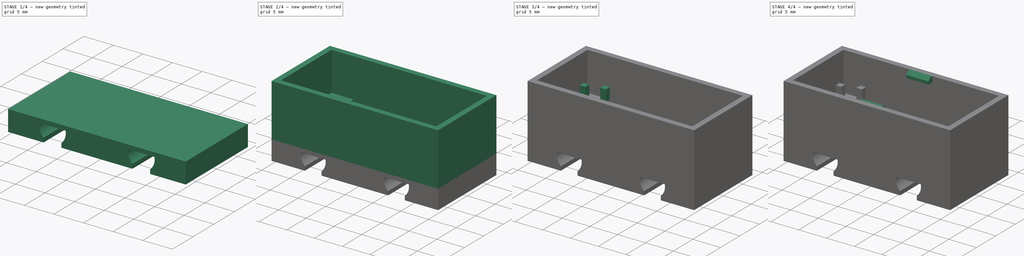
[diagram: build sequence overview — one tinted view per stage of 4, left to right]
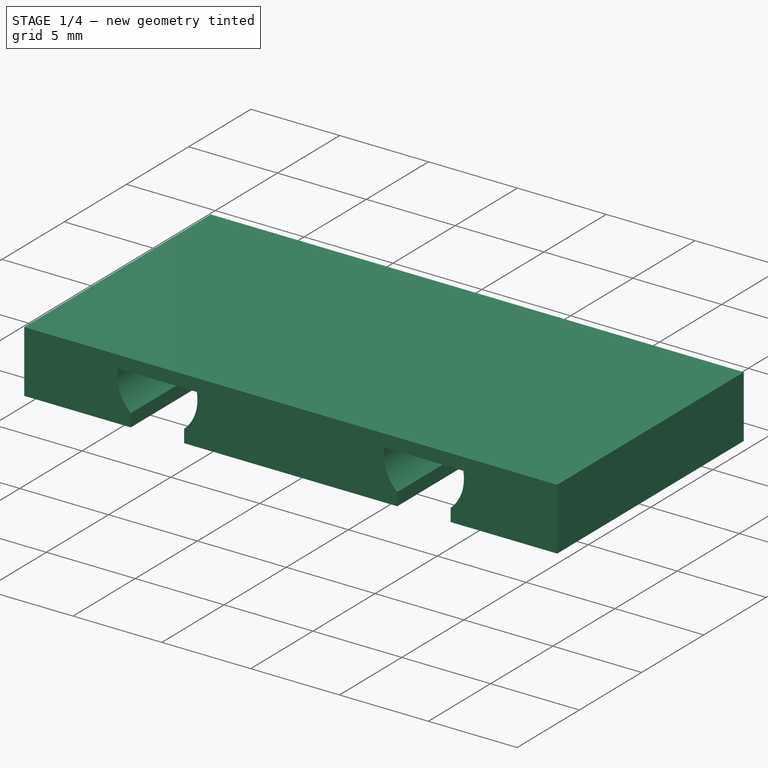
[diagram: stage 1 of 4 — iso view after this stage's code; geometry added in this stage tinted green]
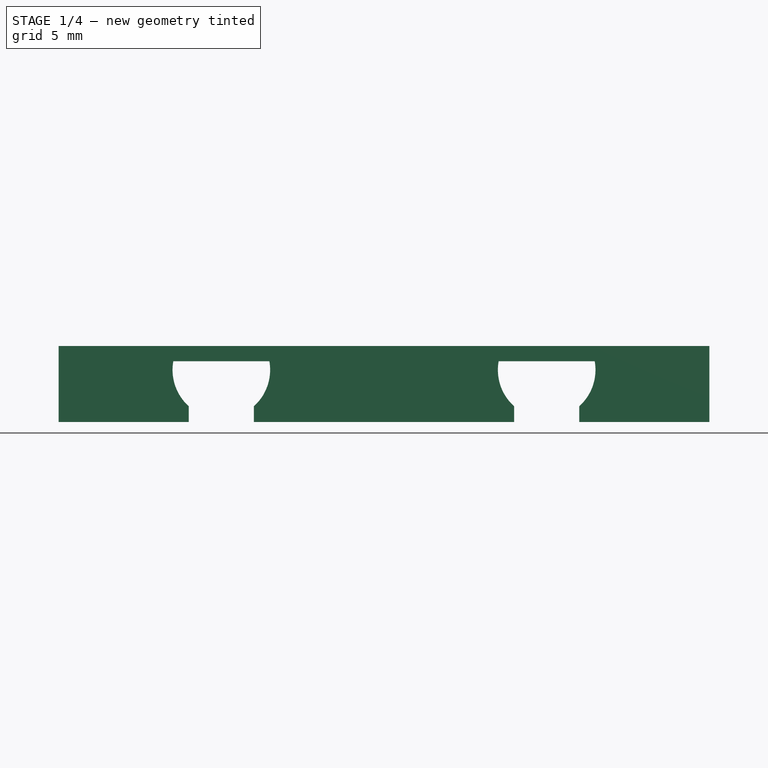
[diagram: stage 1 of 4 — front view after this stage's code; geometry added in this stage tinted green]
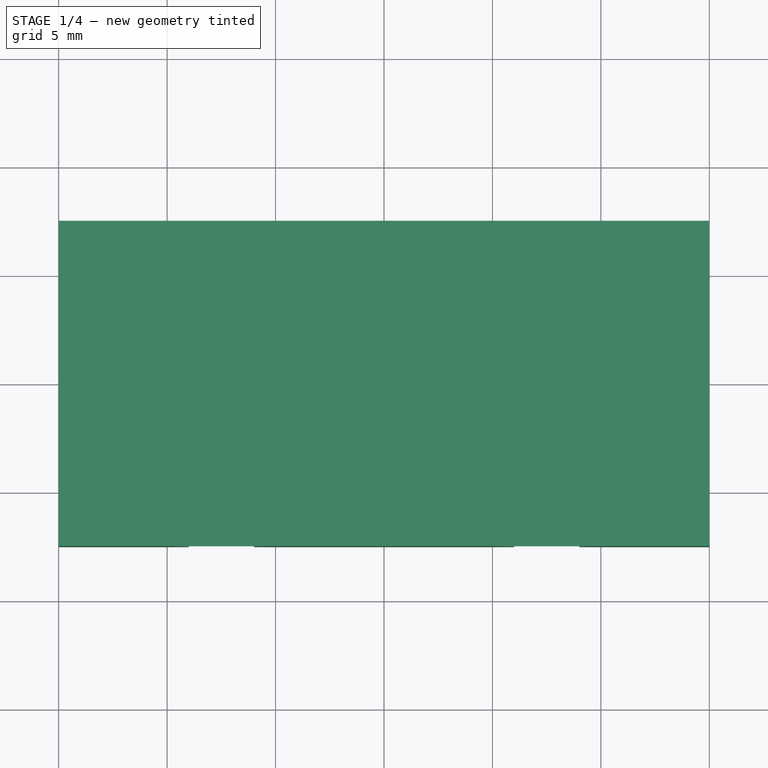
[diagram: stage 1 of 4 — top view after this stage's code; geometry added in this stage tinted green]
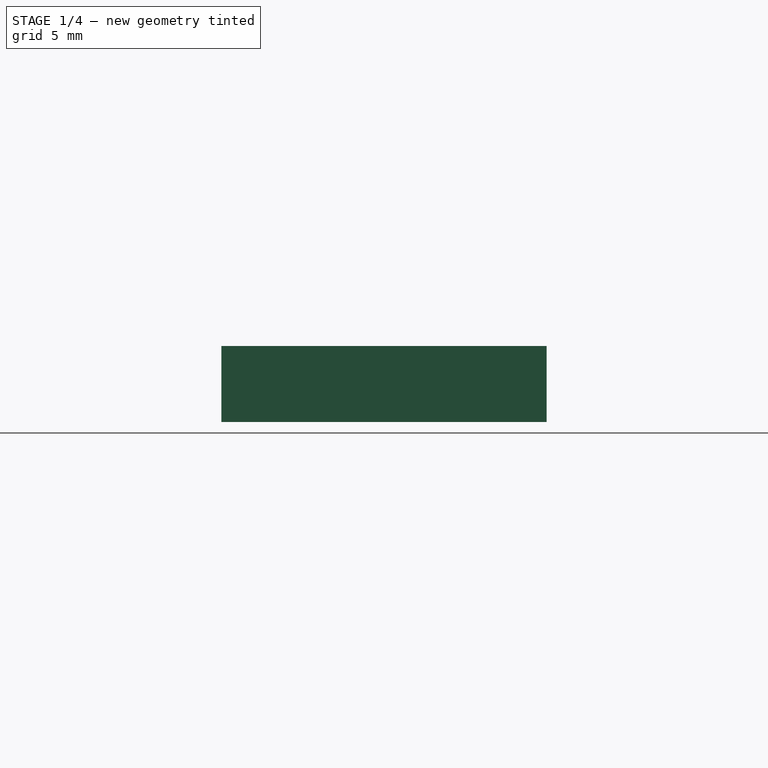
[diagram: stage 1 of 4 — right view after this stage's code; geometry added in this stage tinted green]
FCSTD DOCUMENT  (FreeCAD 0.17R13522 (Git))
Label: bottom30
License: All rights reserved
LicenseURL: http://en.wikipedia.org/wiki/All_rights_reserved
objects: Sketcher::SketchObject×6, PartDesign::Pad×5, PartDesign::Mirrored×5, PartDesign::MultiTransform×2, PartDesign::Pocket×1, PartDesign::LinearPattern×1, PartDesign::Chamfer×1, PartDesign::Body×1, App::Part×1
note: 28 computed .brp shape members not serialized (recipe doc carries the construction recipe); baked Part::Feature solids carry a one-line shape summary decoded from their .brp

FEATURE [Sketcher::SketchObject] Sketch
  MapMode = 5
  Support = -> [XY_Plane001]
  sketch-geometry (4):
    g0: LineSegment StartX=-15 StartY=7.5 StartZ=0 EndX=15 EndY=7.5 EndZ=0
    g1: LineSegment StartX=15 StartY=7.5 StartZ=0 EndX=15 EndY=-7.5 EndZ=0
    g2: LineSegment StartX=15 StartY=-7.5 StartZ=0 EndX=-15 EndY=-7.5 EndZ=0
    g3: LineSegment StartX=-15 StartY=-7.5 StartZ=0 EndX=-15 EndY=7.5 EndZ=0
  constraints (12):
    c: Coincident(g0,g1)
    c: Coincident(g1,g2)
    c: Coincident(g2,g3)
    c: Coincident(g3,g0)
    c: Horizontal(g0)
    c: Horizontal(g2)
    c: Vertical(g1)
    c: Vertical(g3)
    c: Symmetric(g0,g0,g-2)
    c: Symmetric(g0,g2,g-1)
    c: DistanceX(g0,g0) = 30
    c: DistanceY(g3,g3) = 15
FEATURE [PartDesign::Pad] Pad
  Length = 3.5
  Length2 = 100
  Profile = -> Sketch
  Type = 0
FEATURE [Sketcher::SketchObject] Sketch002  label="Sketch001"
  MapMode = 5
  Placement = pos=(0,-7.5,0) rot=(1,0,0;1.5708rad)
  Support = -> [Pad]
  sketch-geometry (8):
    g0: LineSegment StartX=-9 StartY=0.722949 StartZ=0 EndX=-9 EndY=0 EndZ=0
    g1: LineSegment StartX=-6 StartY=0.722949 StartZ=0 EndX=-6 EndY=0 EndZ=0
    g2: LineSegment StartX=-9 StartY=0 StartZ=0 EndX=-6 EndY=0 EndZ=0
    g3: GeomPoint X=-7.5 Y=0 Z=0
    g4: LineSegment [constr] StartX=-7.5 StartY=0 StartZ=0 EndX=-7.5 EndY=2.4 EndZ=0
    g5: ArcOfCircle CenterX=-7.5 CenterY=2.4 CenterZ=0 NormalX=0 NormalY=0 NormalZ=1 AngleXU=0 Radius=2.25 StartAngle=2.96286 EndAngle=3.98266
    g6: ArcOfCircle CenterX=-7.5 CenterY=2.4 CenterZ=0 NormalX=0 NormalY=0 NormalZ=1 AngleXU=0 Radius=2.25 StartAngle=5.44212 EndAngle=6.46191
    g7: LineSegment StartX=-9.71416 StartY=2.8 StartZ=0 EndX=-5.28584 EndY=2.8 EndZ=0
  constraints (22):
    c: PointOnObject(g0,g-1)
    c: Vertical(g0)
    c: Vertical(g1)
    c: Coincident(g2,g0)
    c: Coincident(g2,g1)
    c: PointOnObject(g1,g-1)
    c: DistanceX(g2,g2) = 3
    c: Symmetric(g0,g1,g3)
    c: Coincident(g4,g3)
    c: Vertical(g4)
    c: Coincident(g5,g4)
    c: Coincident(g5,g0)
    c: Coincident(g6,g4)
    c: Coincident(g6,g1)
    c: Coincident(g7,g5)
    c: Coincident(g7,g6)
    c: Horizontal(g7)
    c: Radius(g5) = 2.25
    c: Equal(g5,g6)
    c: DistanceY(g1,g6) = 2.8
    c: DistanceY(g4,g4) = 2.4
    c: DistanceX(g3,g-1) = 7.5
FEATURE [PartDesign::Pocket] Pocket
  BaseFeature = -> Pad
  Length = 5
  Length2 = 100
  Profile = -> Sketch002
  Type = 1
FEATURE [PartDesign::LinearPattern] LinearPattern
  BaseFeature = -> Pocket
  Direction = -> Sketch002 [H_Axis]
  Length = 15
  Occurrences = 2
  Originals = -> [Pocket]
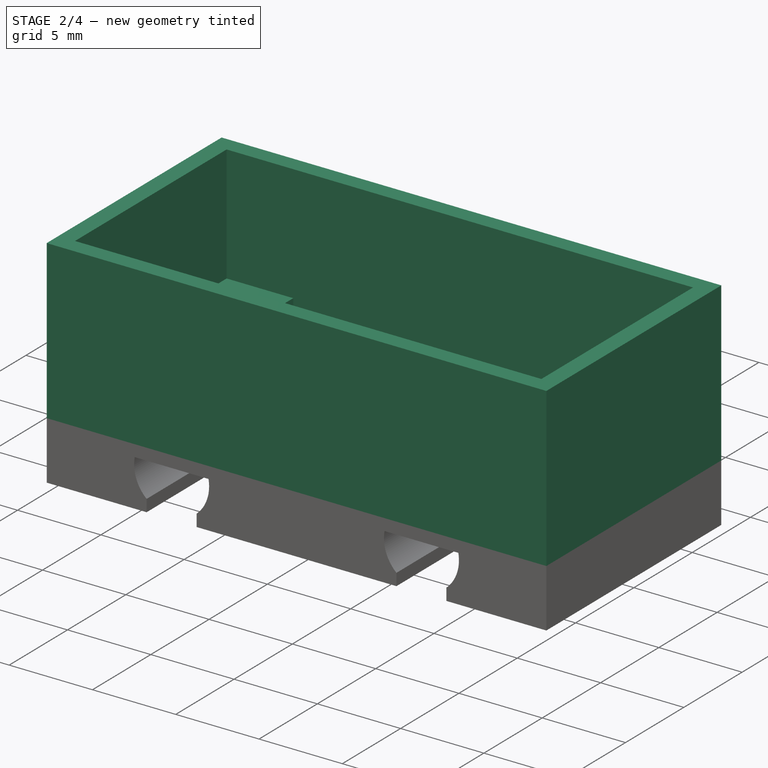
[diagram: stage 2 of 4 — iso view after this stage's code; geometry added in this stage tinted green]
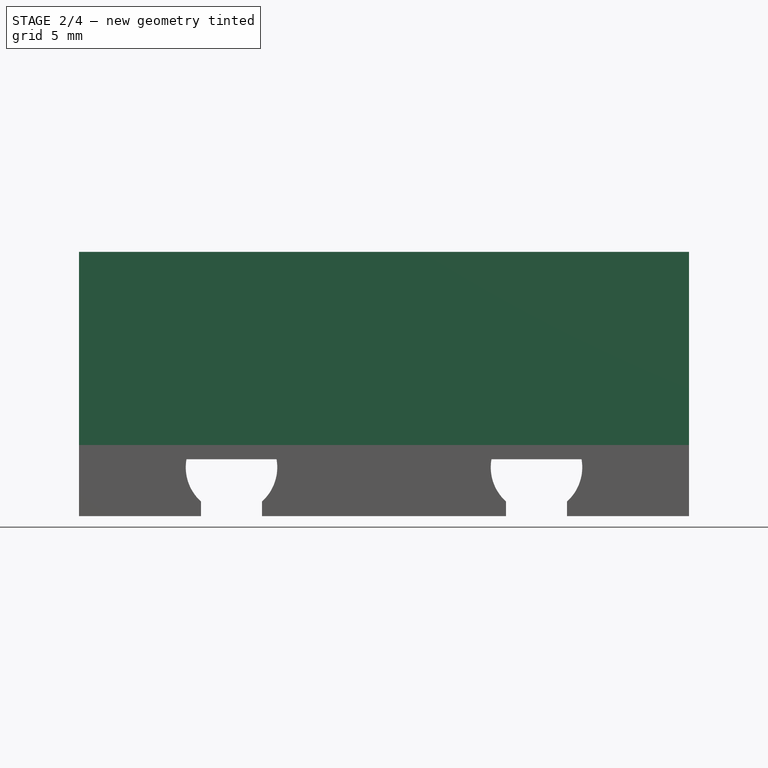
[diagram: stage 2 of 4 — front view after this stage's code; geometry added in this stage tinted green]
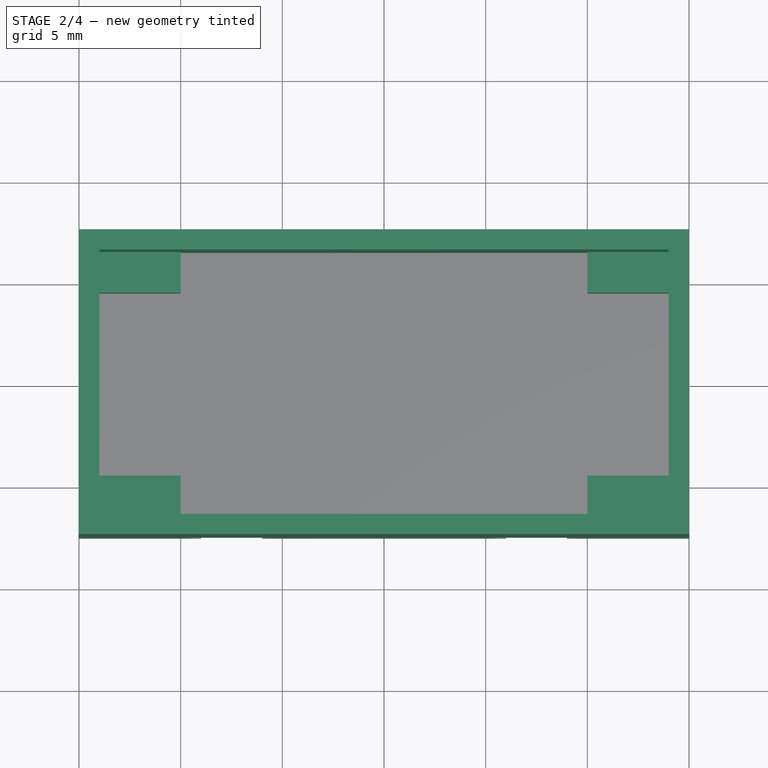
[diagram: stage 2 of 4 — top view after this stage's code; geometry added in this stage tinted green]
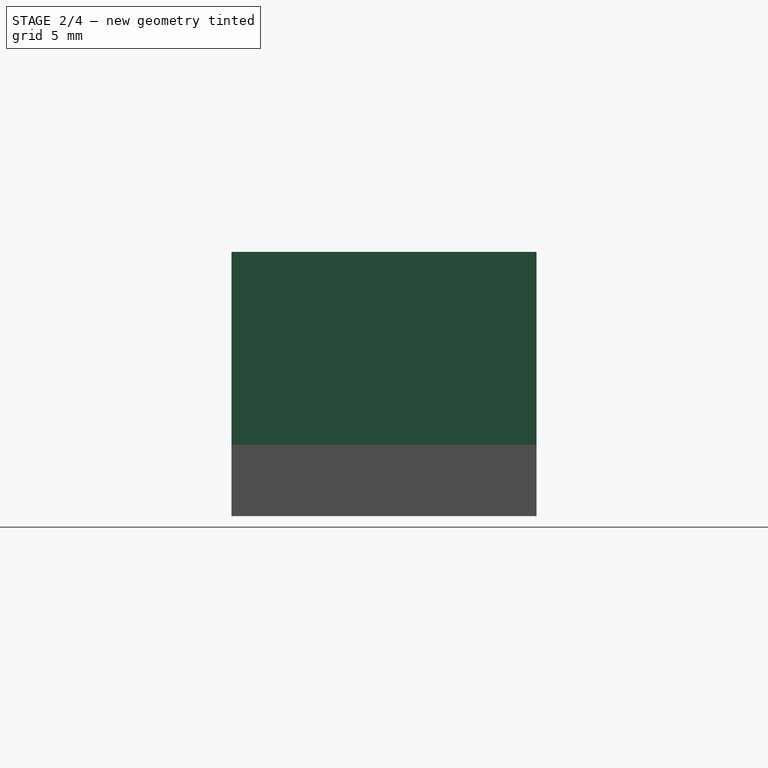
[diagram: stage 2 of 4 — right view after this stage's code; geometry added in this stage tinted green]
FEATURE [Sketcher::SketchObject] Sketch003
  MapMode = 5
  Placement = pos=(0,0,3.5) rot=(0,0,1;0rad)
  Support = -> [LinearPattern]
  sketch-geometry (4):
    g0: LineSegment StartX=-14 StartY=6.5 StartZ=0 EndX=-10 EndY=6.5 EndZ=0
    g1: LineSegment StartX=-10 StartY=6.5 StartZ=0 EndX=-10 EndY=4.5 EndZ=0
    g2: LineSegment StartX=-10 StartY=4.5 StartZ=0 EndX=-14 EndY=4.5 EndZ=0
    g3: LineSegment StartX=-14 StartY=4.5 StartZ=0 EndX=-14 EndY=6.5 EndZ=0
  constraints (12):
    c: Coincident(g0,g1)
    c: Coincident(g1,g2)
    c: Coincident(g2,g3)
    c: Coincident(g3,g0)
    c: Horizontal(g0)
    c: Horizontal(g2)
    c: Vertical(g1)
    c: Vertical(g3)
    c: DistanceX(g0,g0) = 4
    c: DistanceY(g3,g3) = 2
    c: DistanceX(g0,g-1) = 14
    c: DistanceY(g-1,g0) = 6.5
FEATURE [PartDesign::Pad] Pad001
  BaseFeature = -> LinearPattern
  Length = 2.5
  Length2 = 100
  Profile = -> Sketch003
  Type = 0
FEATURE [PartDesign::Mirrored] Mirrored
  MirrorPlane = -> YZ_Plane001
FEATURE [PartDesign::Mirrored] Mirrored001
  MirrorPlane = -> XZ_Plane001
FEATURE [PartDesign::MultiTransform] MultiTransform
  BaseFeature = -> Pad001
  Originals = -> [Pad001]
  Transformations = -> [Mirrored,Mirrored001]
FEATURE [Sketcher::SketchObject] Sketch004
  MapMode = 5
  Placement = pos=(0,0,3.5) rot=(0,0,1;0rad)
  Support = -> [MultiTransform]
  sketch-geometry (8):
    g0: LineSegment StartX=-15 StartY=7.5 StartZ=0 EndX=15 EndY=7.5 EndZ=0
    g1: LineSegment StartX=15 StartY=7.5 StartZ=0 EndX=15 EndY=-7.5 EndZ=0
    g2: LineSegment StartX=15 StartY=-7.5 StartZ=0 EndX=-15 EndY=-7.5 EndZ=0
    g3: LineSegment StartX=-15 StartY=-7.5 StartZ=0 EndX=-15 EndY=7.5 EndZ=0
    g4: LineSegment StartX=-14 StartY=6.5 StartZ=0 EndX=14 EndY=6.5 EndZ=0
    g5: LineSegment StartX=14 StartY=6.5 StartZ=0 EndX=14 EndY=-6.5 EndZ=0
    g6: LineSegment StartX=14 StartY=-6.5 StartZ=0 EndX=-14 EndY=-6.5 EndZ=0
    g7: LineSegment StartX=-14 StartY=-6.5 StartZ=0 EndX=-14 EndY=6.5 EndZ=0
  constraints (24):
    c: Coincident(g0,g1)
    c: Coincident(g1,g2)
    c: Coincident(g2,g3)
    c: Coincident(g3,g0)
    c: Horizontal(g0)
    c: Horizontal(g2)
    c: Vertical(g1)
    c: Vertical(g3)
    c: Coincident(g4,g5)
    c: Coincident(g5,g6)
    c: Coincident(g6,g7)
    c: Coincident(g7,g4)
    c: Horizontal(g4)
    c: Horizontal(g6)
    c: Vertical(g5)
    c: Vertical(g7)
    c: DistanceX(g0,g4) = 1
    c: DistanceY(g4,g0) = 1
    c: Symmetric(g0,g0,g-2)
    c: Symmetric(g0,g2,g-1)
    c: DistanceX(g0,g0) = 30
    c: DistanceY(g3,g3) = 15
    c: Symmetric(g6,g4,g-1)
    c: Symmetric(g4,g4,g-2)
FEATURE [PartDesign::Pad] Pad002
  BaseFeature = -> MultiTransform
  Length = 9.5
  Length2 = 100
  Profile = -> Sketch004
  Type = 0
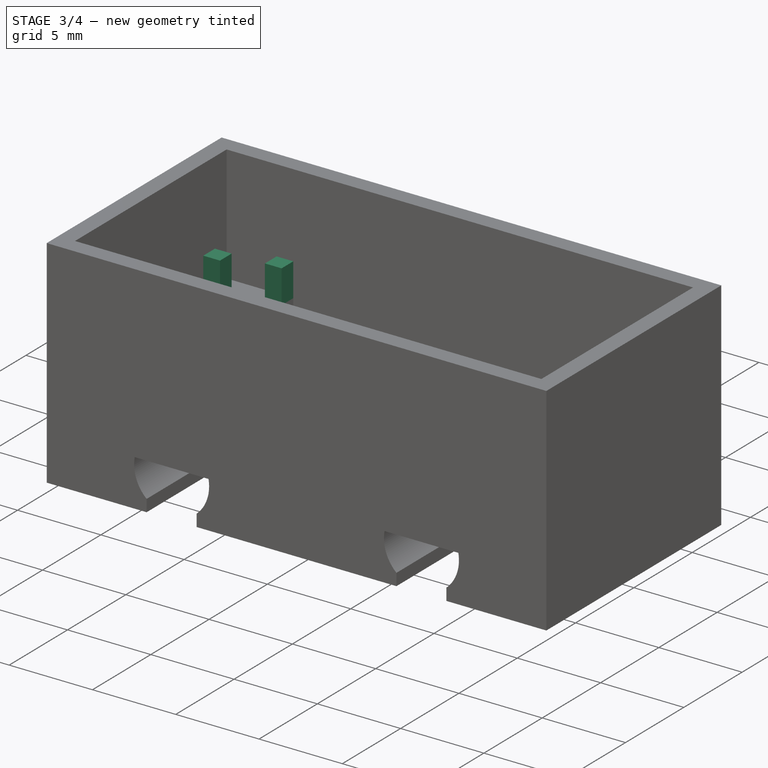
[diagram: stage 3 of 4 — iso view after this stage's code; geometry added in this stage tinted green]
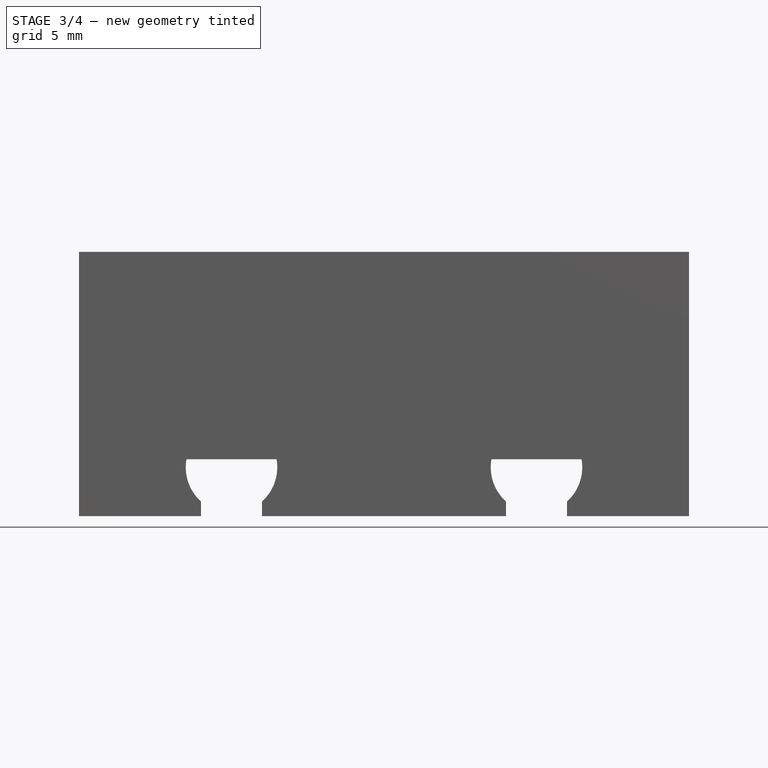
[diagram: stage 3 of 4 — front view after this stage's code; geometry added in this stage tinted green]
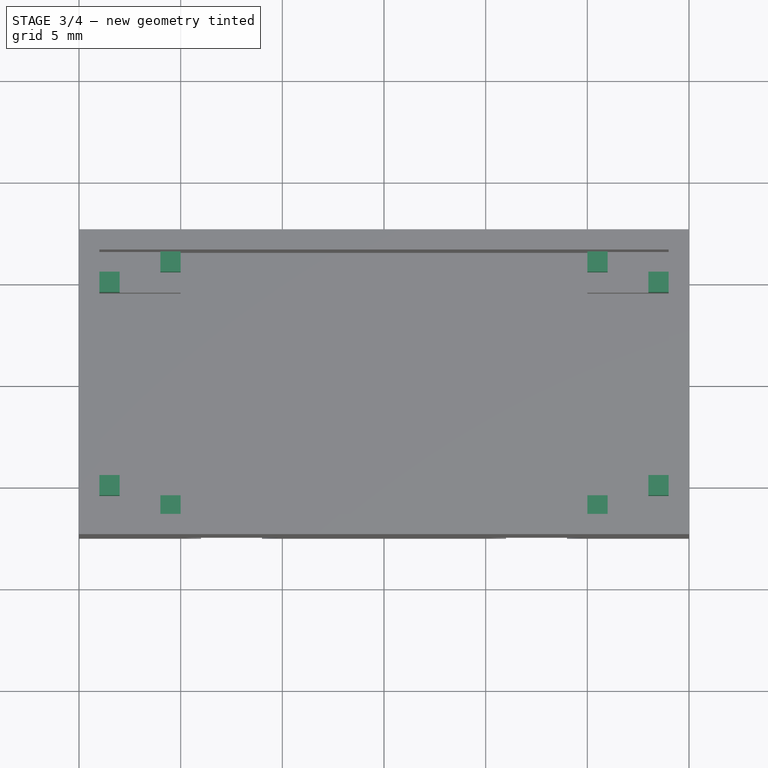
[diagram: stage 3 of 4 — top view after this stage's code; geometry added in this stage tinted green]
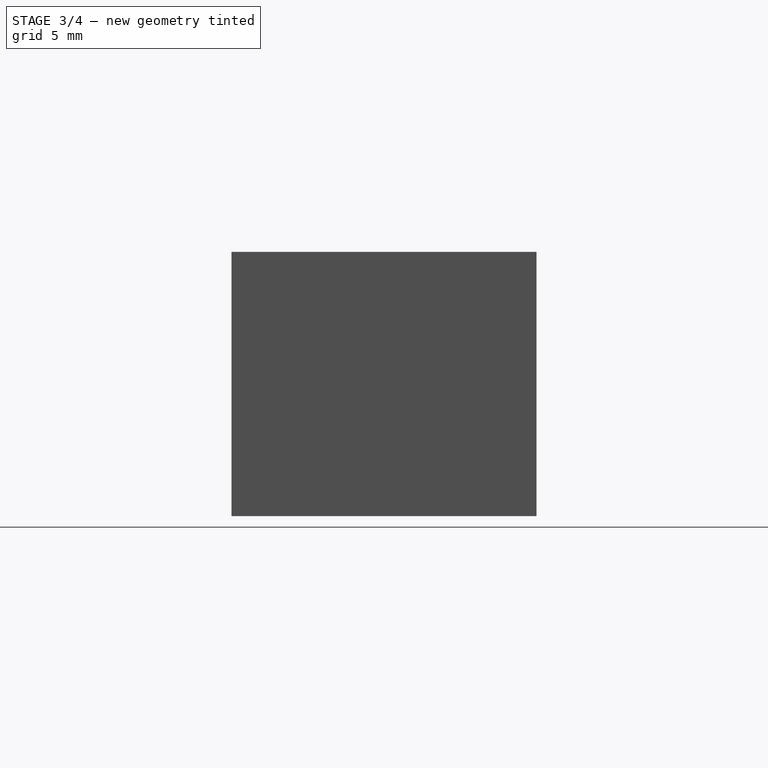
[diagram: stage 3 of 4 — right view after this stage's code; geometry added in this stage tinted green]
FEATURE [Sketcher::SketchObject] Sketch005
  MapMode = 5
  Placement = pos=(0,0,6) rot=(0,0,1;0rad)
  Support = -> [Pad002]
  sketch-geometry (8):
    g0: LineSegment StartX=-11 StartY=6.5 StartZ=0 EndX=-10 EndY=6.5 EndZ=0
    g1: LineSegment StartX=-10 StartY=6.5 StartZ=0 EndX=-10 EndY=5.5 EndZ=0
    g2: LineSegment StartX=-10 StartY=5.5 StartZ=0 EndX=-11 EndY=5.5 EndZ=0
    g3: LineSegment StartX=-11 StartY=5.5 StartZ=0 EndX=-11 EndY=6.5 EndZ=0
    g4: LineSegment StartX=-14 StartY=5.5 StartZ=0 EndX=-13 EndY=5.5 EndZ=0
    g5: LineSegment StartX=-13 StartY=5.5 StartZ=0 EndX=-13 EndY=4.5 EndZ=0
    g6: LineSegment StartX=-13 StartY=4.5 StartZ=0 EndX=-14 EndY=4.5 EndZ=0
    g7: LineSegment StartX=-14 StartY=4.5 StartZ=0 EndX=-14 EndY=5.5 EndZ=0
  constraints (24):
    c: Coincident(g0,g1)
    c: Coincident(g1,g2)
    c: Coincident(g2,g3)
    c: Coincident(g3,g0)
    c: Horizontal(g0)
    c: Horizontal(g2)
    c: Vertical(g1)
    c: Vertical(g3)
    c: Coincident(g4,g5)
    c: Coincident(g5,g6)
    c: Coincident(g6,g7)
    c: Coincident(g7,g4)
    c: Horizontal(g4)
    c: Horizontal(g6)
    c: Vertical(g5)
    c: Vertical(g7)
    c: DistanceX(g0,g0) = 1
    c: DistanceY(g3,g3) = 1
    c: Equal(g7,g0)
    c: Equal(g4,g3)
    c: DistanceX(g0,g-1) = 10
    c: DistanceY(g-1,g0) = 6.5
    c: DistanceY(g-1,g6) = 4.5
    c: DistanceX(g6,g-1) = 14
FEATURE [PartDesign::Pad] Pad003
  BaseFeature = -> Pad002
  Length = 2
  Length2 = 100
  Profile = -> Sketch005
  Type = 0
FEATURE [PartDesign::Mirrored] Mirrored002
  MirrorPlane = -> YZ_Plane001
FEATURE [PartDesign::Mirrored] Mirrored003
  MirrorPlane = -> XZ_Plane001
FEATURE [PartDesign::MultiTransform] MultiTransform001
  BaseFeature = -> Pad003
  Originals = -> [Pad003]
  Transformations = -> [Mirrored002,Mirrored003]
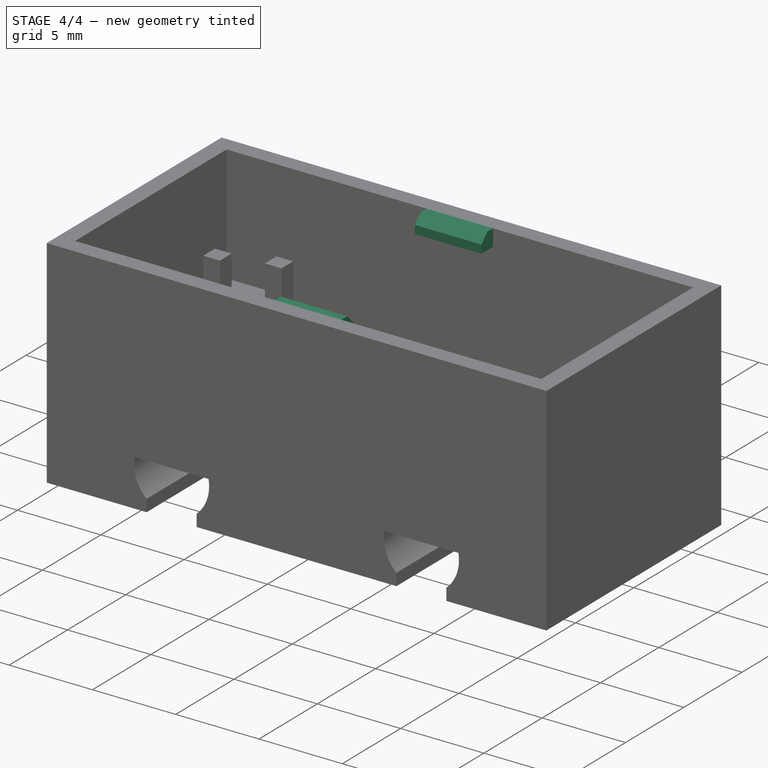
[diagram: stage 4 of 4 — iso view after this stage's code; geometry added in this stage tinted green]
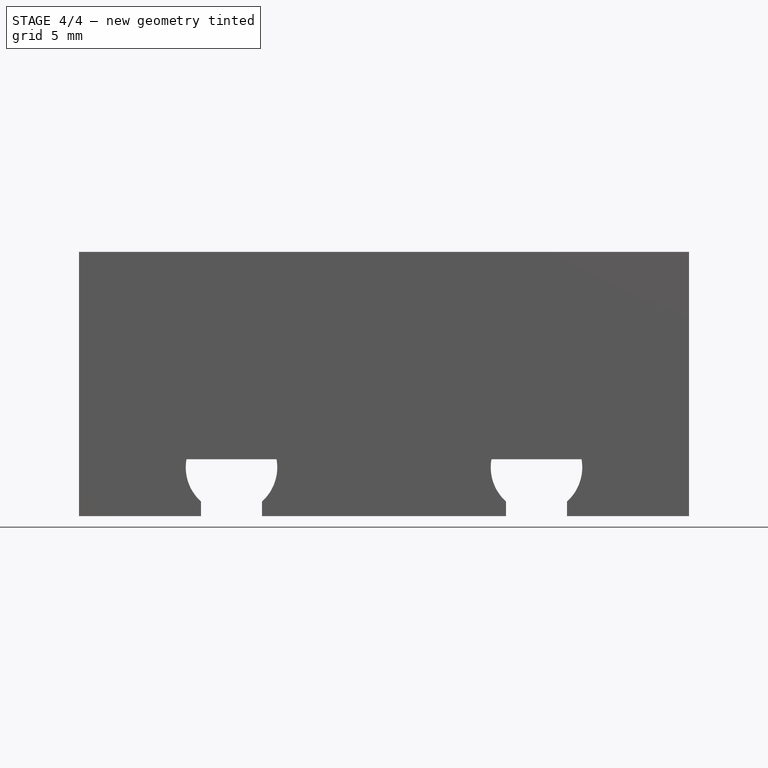
[diagram: stage 4 of 4 — front view after this stage's code; geometry added in this stage tinted green]
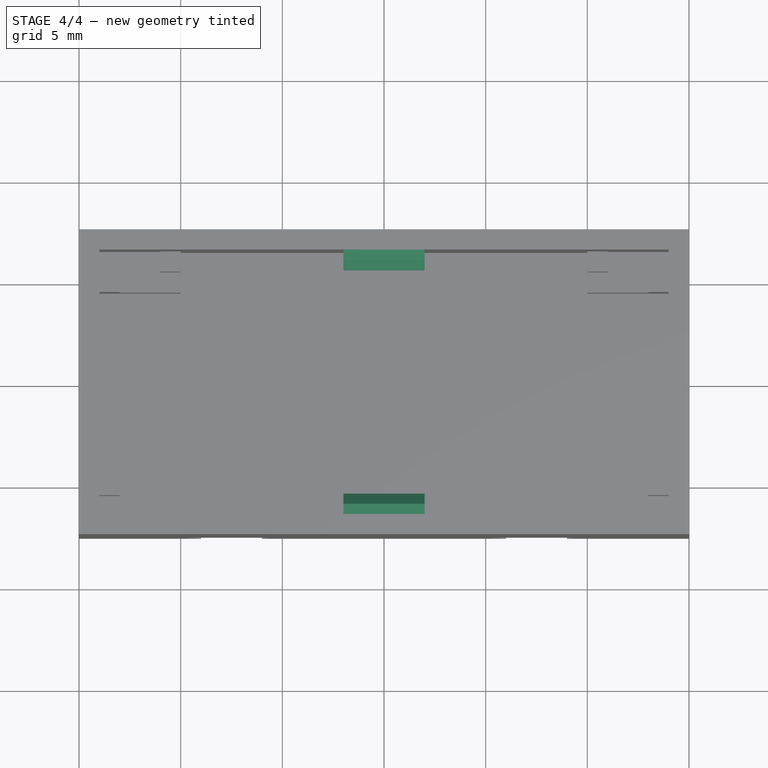
[diagram: stage 4 of 4 — top view after this stage's code; geometry added in this stage tinted green]
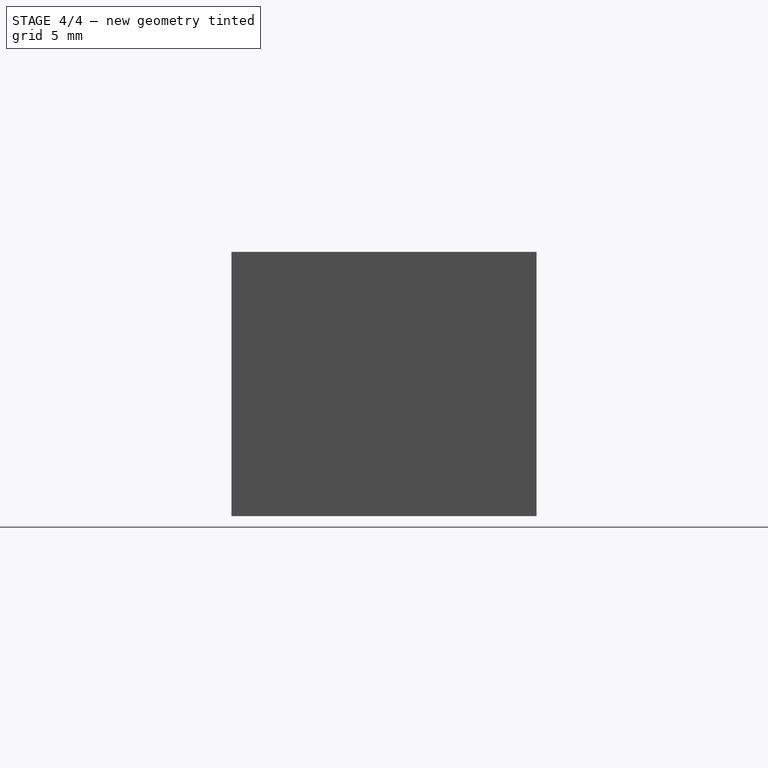
[diagram: stage 4 of 4 — right view after this stage's code; geometry added in this stage tinted green]
FEATURE [Sketcher::SketchObject] Sketch006
  MapMode = 5
  Placement = pos=(0,6.5,0) rot=(1,0,0;1.5708rad)
  Support = -> [MultiTransform001]
  sketch-geometry (4):
    g0: LineSegment StartX=-2 StartY=13 StartZ=0 EndX=2 EndY=13 EndZ=0
    g1: LineSegment StartX=2 StartY=13 StartZ=0 EndX=2 EndY=12 EndZ=0
    g2: LineSegment StartX=2 StartY=12 StartZ=0 EndX=-2 EndY=12 EndZ=0
    g3: LineSegment StartX=-2 StartY=12 StartZ=0 EndX=-2 EndY=13 EndZ=0
  constraints (12):
    c: Coincident(g0,g1)
    c: Coincident(g1,g2)
    c: Coincident(g2,g3)
    c: Coincident(g3,g0)
    c: Horizontal(g0)
    c: Horizontal(g2)
    c: Vertical(g1)
    c: Vertical(g3)
    c: Symmetric(g0,g0,g-2)
    c: DistanceY(g-1,g0) = 13
    c: DistanceX(g0,g0) = 4
    c: DistanceY(g3,g3) = 1
FEATURE [PartDesign::Pad] Pad004
  BaseFeature = -> MultiTransform001
  Length = 1
  Length2 = 100
  Profile = -> Sketch006
  Type = 0
FEATURE [PartDesign::Mirrored] Mirrored004
  BaseFeature = -> Pad004
  MirrorPlane = -> XZ_Plane001
  Originals = -> [Pad004]
FEATURE [PartDesign::Chamfer] Chamfer
  Base = -> Mirrored004 [Edge112,Edge109]
  BaseFeature = -> Mirrored004
  Size = 0.5
FEATURE [PartDesign::Body] PadBody
  Group = -> [Sketch,Pad,Sketch002,Pocket,LinearPattern,Sketch003,Pad001,MultiTransform,Mirrored,Mirrored001,Sketch004,Pad002,Sketch005,Pad003,MultiTransform001,Mirrored002,Mirrored003,Sketch006,Pad004,Mirrored004,Chamfer]
  Origin = -> Origin001
  Tip = -> Chamfer
FEATURE [App::Part] Part
  Group = -> [PadBody]
  License = CC BY 3.0
  LicenseURL = http://creativecommons.org/licenses/by/3.0/
  Origin = -> Origin
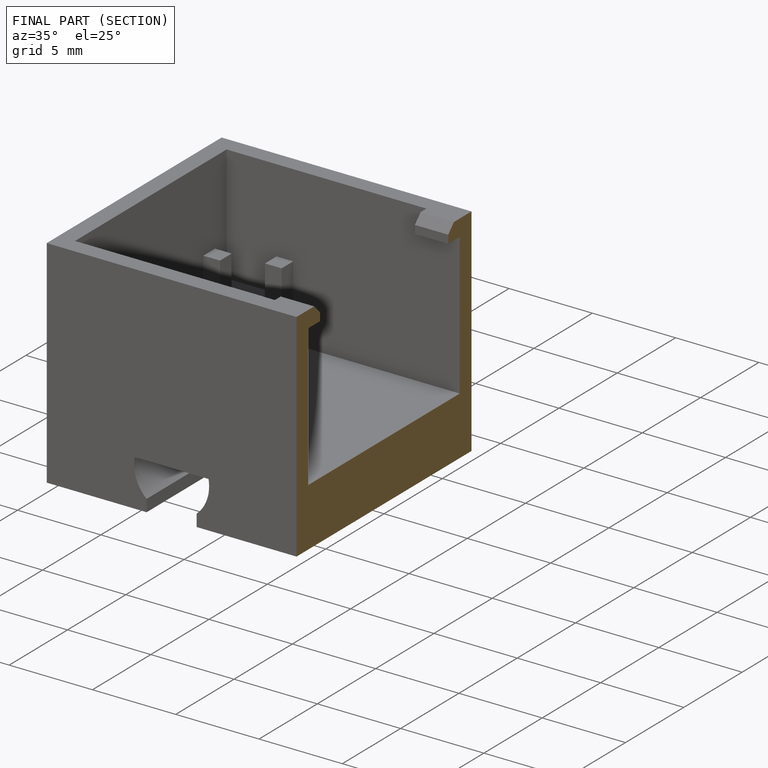
[diagram: finished part — half-section view (interior)]
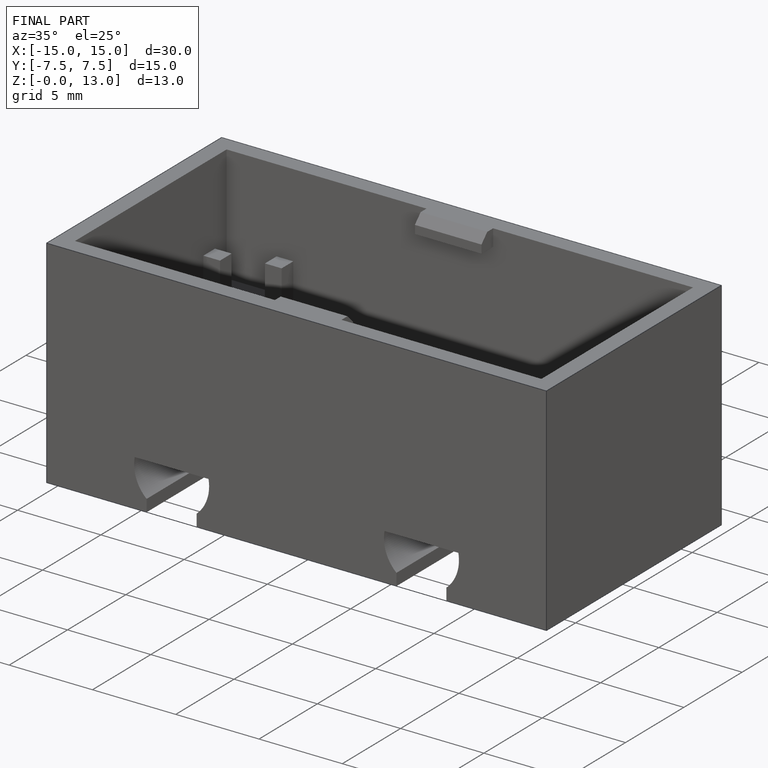
[diagram: finished part — iso view with bounding-box wireframe]
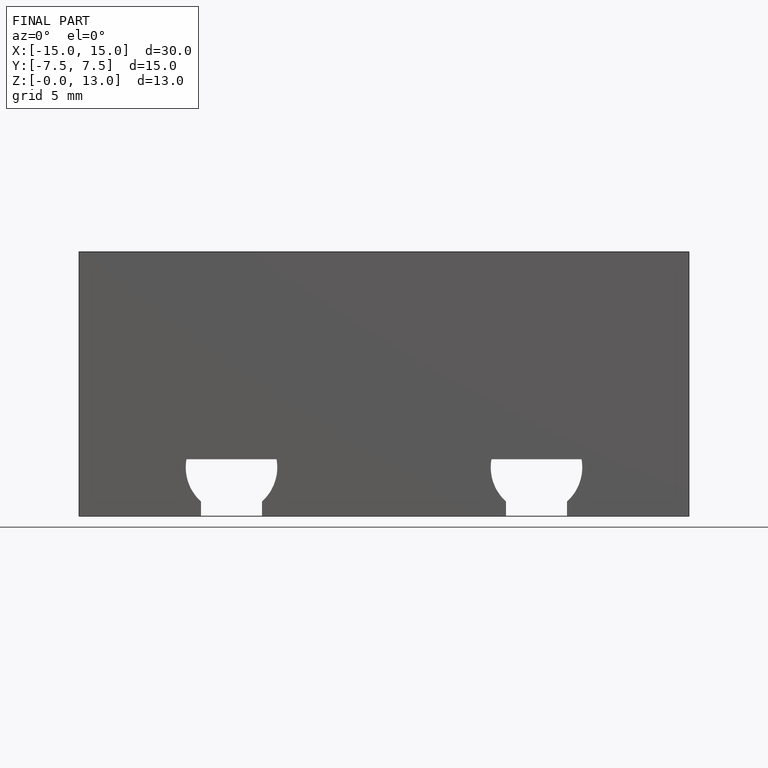
[diagram: finished part — front view with bounding-box wireframe]
